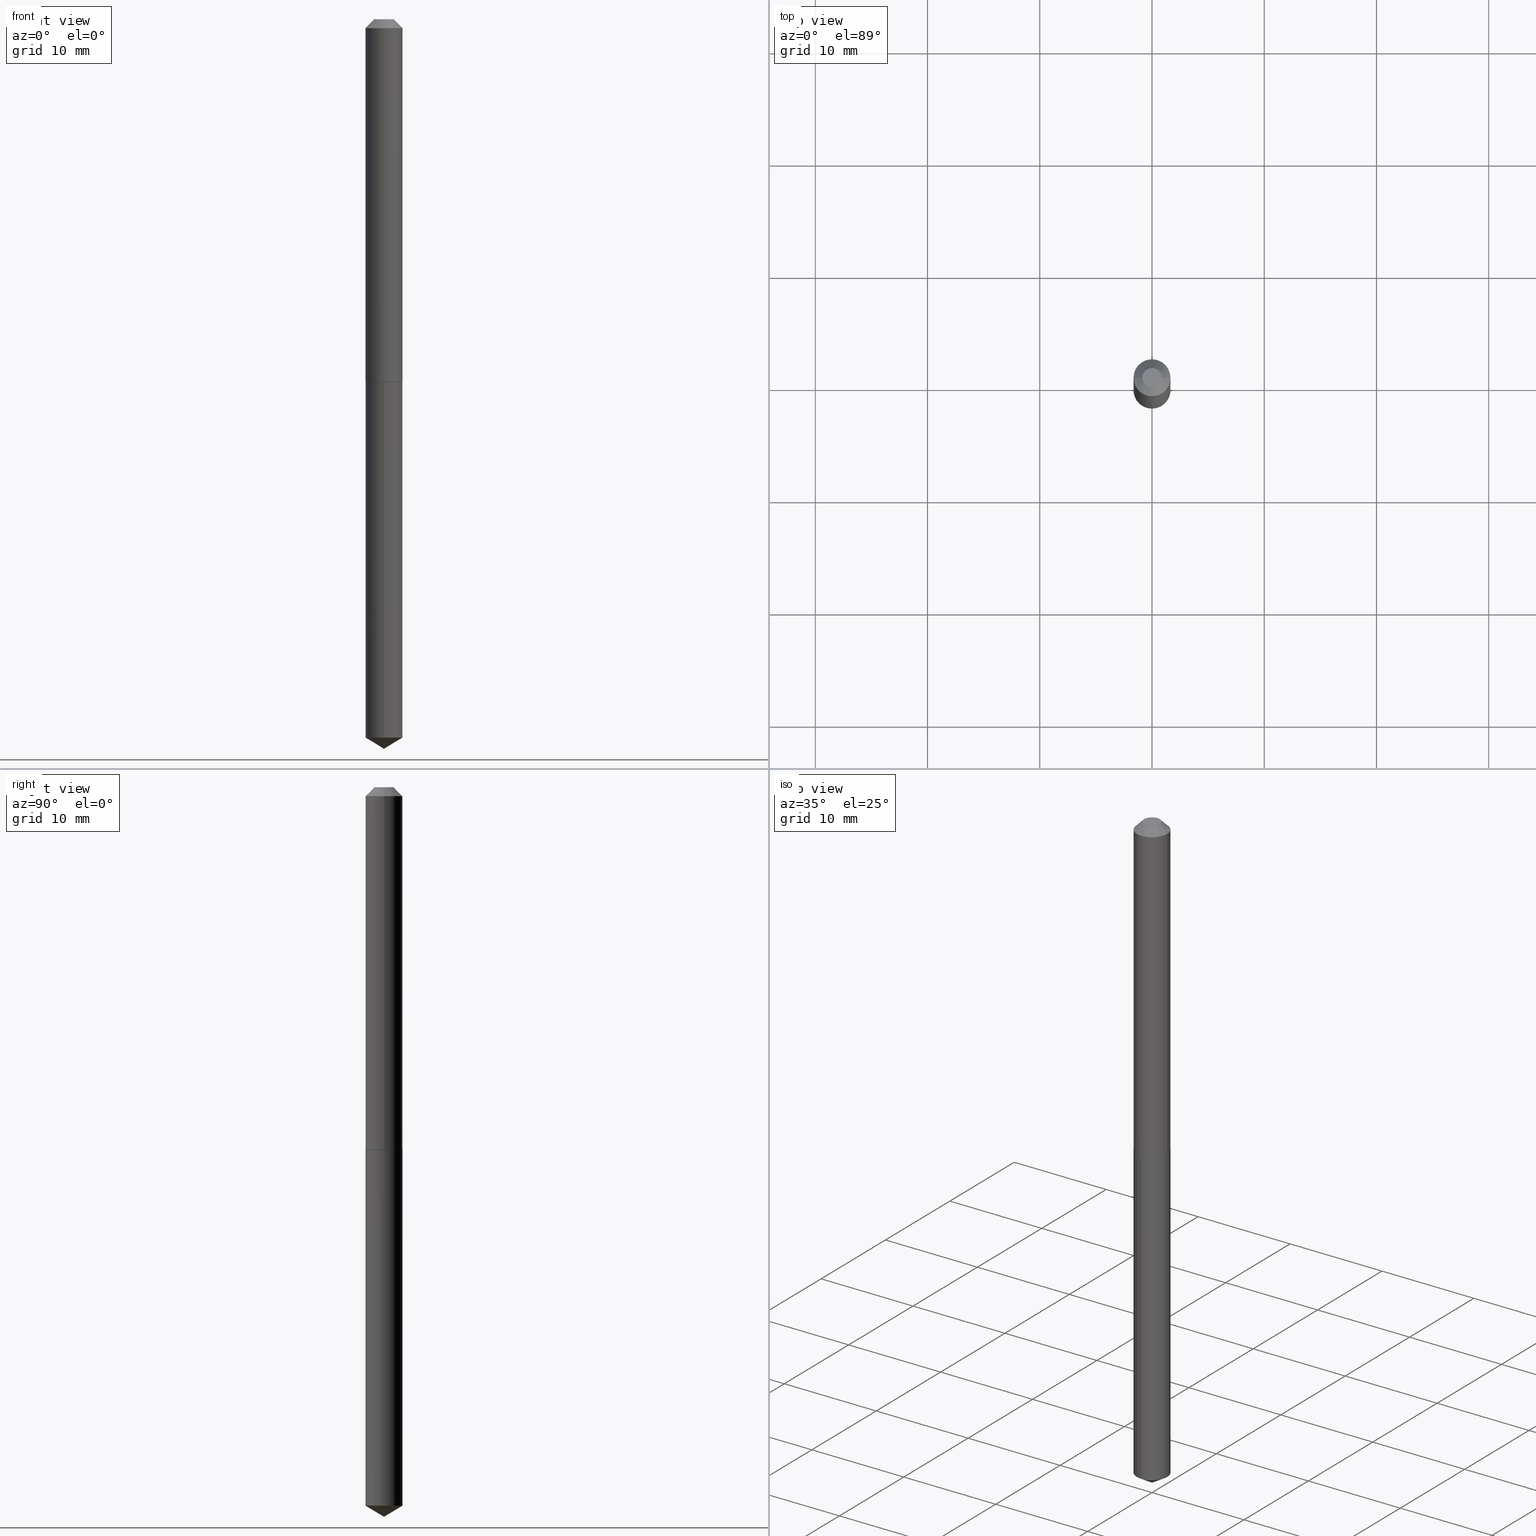
[diagram: canonical four-view strip — front | top / right | iso, engineering-drawing reading convention]
A machine part, canonical four-view strip (front | top / right | iso — engineering-drawing reading convention). The complete STEP part file that produces these views, byte-faithful:
ISO-10303-21;
HEADER;
FILE_DESCRIPTION (( 'STEP AP203' ),
    '1' );
FILE_NAME ('68312.STEP',
    '2024-04-23T13:03:15',
    ( '' ),
    ( '' ),
    'SwSTEP 2.0',
    'SolidWorks 2023',
    '' );
FILE_SCHEMA (( 'CONFIG_CONTROL_DESIGN' ));
ENDSEC;

DATA;
#1 = PERSON_AND_ORGANIZATION_ROLE ( 'classification_officer' ) ;
#2 = EDGE_LOOP ( 'NONE', ( #26, #289 ) ) ;
#3 = ADVANCED_FACE ( 'NONE', ( #213 ), #30, .T. ) ;
#4 = VECTOR ( 'NONE', #97, 39.37007874015748143 ) ;
#5 = AXIS2_PLACEMENT_3D ( 'NONE', #338, #66, #50 ) ;
#6 = PERSON_AND_ORGANIZATION ( #77, #353 ) ;
#7 = CARTESIAN_POINT ( 'NONE',  ( 3.109902680825638129E-29, -4.440116818606828093E-15, -1.271700000000000053 ) ) ;
#8 = DIRECTION ( 'NONE',  ( -2.445570832791606508E-29, 3.491335230935686971E-15, 1.000000000000000000 ) ) ;
#9 = DIRECTION ( 'NONE',  ( -6.982962677686266711E-15, -1.000000000000000000, 0.000000000000000000 ) ) ;
#10 = CIRCLE ( 'NONE', #352, 0.06494999999999999385 ) ;
#11 = CC_DESIGN_SECURITY_CLASSIFICATION ( #69, ( #18 ) ) ;
#12 = DIRECTION ( 'NONE',  ( 1.000000000000000000, -6.982962677686265922E-15, 4.876176775795935793E-29 ) ) ;
#13 = LINE ( 'NONE', #162, #41 ) ;
#14 = CARTESIAN_POINT ( 'NONE',  ( 4.614975068762469526E-16, 0.06494999999999556684, -1.271700000000000275 ) ) ;
#15 = ORIENTED_EDGE ( 'NONE', *, *, #123, .T. ) ;
#16 = CC_DESIGN_PERSON_AND_ORGANIZATION_ASSIGNMENT ( #122, #82, ( #134 ) ) ;
#17 = DIRECTION ( 'NONE',  ( -2.445468806185136597E-29, 3.491481338843145583E-15, 1.000000000000000000 ) ) ;
#18 = PRODUCT_DEFINITION_FORMATION_WITH_SPECIFIED_SOURCE ( 'ANY', '', #104, .NOT_KNOWN. ) ;
#19 = DIRECTION ( 'NONE',  ( 0.000000000000000000, 0.000000000000000000, 1.000000000000000000 ) ) ;
#20 = DIRECTION ( 'NONE',  ( 1.000000000000000000, -6.982962677686267499E-15, 4.876196328173749550E-29 ) ) ;
#21 = ADVANCED_FACE ( 'NONE', ( #116 ), #152, .T. ) ;
#22 = DIRECTION ( 'NONE',  ( -2.445570832791606508E-29, 3.491335230935686971E-15, 1.000000000000000000 ) ) ;
#23 = ORIENTED_EDGE ( 'NONE', *, *, #109, .F. ) ;
#24 = CIRCLE ( 'NONE', #341, 0.06494999999999999385 ) ;
#25 = LINE ( 'NONE', #75, #177 ) ;
#26 = ORIENTED_EDGE ( 'NONE', *, *, #181, .T. ) ;
#27 = ADVANCED_FACE ( 'NONE', ( #267 ), #118, .F. ) ;
#28 = DIRECTION ( 'NONE',  ( 1.000000000000000000, 0.000000000000000000, 0.000000000000000000 ) ) ;
#29 = VERTEX_POINT ( 'NONE', #61 ) ;
#30 = CONICAL_SURFACE ( 'NONE', #76, 65.52281426576929846, 1.029744258676660307 ) ;
#31 = AXIS2_PLACEMENT_3D ( 'NONE', #288, #381, #201 ) ;
#32 = CARTESIAN_POINT ( 'NONE',  ( 3.109902680825638129E-29, -4.440116818606828093E-15, -1.271700000000000053 ) ) ;
#33 = CARTESIAN_POINT ( 'NONE',  ( 3.109902680825638129E-29, -4.440116818606828093E-15, -1.271700000000000053 ) ) ;
#34 = PERSON_AND_ORGANIZATION_ROLE ( 'design_supplier' ) ;
#35 = DIRECTION ( 'NONE',  ( -5.985567269335963368E-15, -0.8571673007021134438, 0.5150380749100521571 ) ) ;
#36 = AXIS2_PLACEMENT_3D ( 'NONE', #192, #277, #133 ) ;
#37 = COORDINATED_UNIVERSAL_TIME_OFFSET ( 5, 0, .BEHIND. ) ;
#38 = VERTEX_POINT ( 'NONE', #114 ) ;
#39 = VERTEX_POINT ( 'NONE', #235 ) ;
#40 = FACE_OUTER_BOUND ( 'NONE', #120, .T. ) ;
#41 = VECTOR ( 'NONE', #339, 39.37007874015748143 ) ;
#42 = FACE_OUTER_BOUND ( 'NONE', #313, .T. ) ;
#43 = FACE_OUTER_BOUND ( 'NONE', #2, .T. ) ;
#44 = ADVANCED_FACE ( 'NONE', ( #207 ), #247, .T. ) ;
#45 = VERTEX_POINT ( 'NONE', #334 ) ;
#46 = CARTESIAN_POINT ( 'NONE',  ( 0.06494999999999999385, -5.546981367941099671E-16, -0.03125000000000020123 ) ) ;
#47 = DIRECTION ( 'NONE',  ( -0.7071067811865452413, 2.468850131082233000E-15, -0.7071067811865497932 ) ) ;
#48 = LOCAL_TIME ( 9, 3, 15.00000000000000000, #359 ) ;
#49 = EDGE_CURVE ( 'NONE', #369, #332, #142, .T. ) ;
#50 = DIRECTION ( 'NONE',  ( -6.982962677686266711E-15, -1.000000000000000000, 0.000000000000000000 ) ) ;
#51 = PERSON_AND_ORGANIZATION ( #77, #353 ) ;
#52 = CIRCLE ( 'NONE', #219, 0.06495000000000014651 ) ;
#53 = ORIENTED_EDGE ( 'NONE', *, *, #123, .F. ) ;
#54 = APPROVAL ( #179, 'UNSPECIFIED' ) ;
#55 = ORIENTED_EDGE ( 'NONE', *, *, #306, .F. ) ;
#56 = DATE_AND_TIME ( #147, #272 ) ;
#57 = DIRECTION ( 'NONE',  ( 1.000000000000000000, -6.982962677686269077E-15, 0.000000000000000000 ) ) ;
#58 = AXIS2_PLACEMENT_3D ( 'NONE', #67, #188, #365 ) ;
#59 = CC_DESIGN_APPROVAL ( #54, ( #134 ) ) ;
#60 = CARTESIAN_POINT ( 'NONE',  ( 3.109902680825638129E-29, -4.440116818606828093E-15, -1.271700000000000053 ) ) ;
#61 = CARTESIAN_POINT ( 'NONE',  ( -4.535434259156918360E-16, -0.06495000000000443474, -1.271699999999999608 ) ) ;
#62 = DIRECTION ( 'NONE',  ( -2.445468806185136597E-29, 3.491481338843145583E-15, 1.000000000000000000 ) ) ;
#63 = EDGE_CURVE ( 'NONE', #112, #45, #265, .T. ) ;
#64 = CONICAL_SURFACE ( 'NONE', #58, 0.06494999999999999385, 0.7853981633974450594 ) ;
#65 = ORIENTED_EDGE ( 'NONE', *, *, #306, .T. ) ;
#66 = DIRECTION ( 'NONE',  ( -2.445570832791606508E-29, 3.491335230935686971E-15, 1.000000000000000000 ) ) ;
#67 = CARTESIAN_POINT ( 'NONE',  ( 7.642090019328601786E-31, -1.091087918388490144E-16, -0.03125000000000020123 ) ) ;
#68 = AXIS2_PLACEMENT_3D ( 'NONE', #32, #360, #236 ) ;
#69 = SECURITY_CLASSIFICATION ( '', '', #238 ) ;
#70 = DIRECTION ( 'NONE',  ( -2.445468806185136597E-29, 3.491481338843145583E-15, 1.000000000000000000 ) ) ;
#71 = ORIENTED_EDGE ( 'NONE', *, *, #131, .T. ) ;
#72 = CARTESIAN_POINT ( 'NONE',  ( -4.535434259156613663E-16, -0.06495000000000882012, -2.520074102794160442 ) ) ;
#73 = ORIENTED_EDGE ( 'NONE', *, *, #181, .F. ) ;
#74 = LINE ( 'NONE', #254, #4 ) ;
#75 = CARTESIAN_POINT ( 'NONE',  ( -0.06494999999999999385, 3.444346340768739447E-16, -0.03125000000000020123 ) ) ;
#76 = AXIS2_PLACEMENT_3D ( 'NONE', #330, #273, #337 ) ;
#77 = PERSON ( 'UNSPECIFIED', 'UNSPECIFIED', 'UNSPECIFIED', ('UNSPECIFIED'), ('UNSPECIFIED'), ('UNSPECIFIED') ) ;
#78 = VERTEX_POINT ( 'NONE', #146 ) ;
#79 = ORIENTED_EDGE ( 'NONE', *, *, #261, .F. ) ;
#80 = CARTESIAN_POINT ( 'NONE',  ( -0.06495000000000007712, 4.614975068761856187E-16, -3.194848341120565109E-30 ) ) ;
#81 = ORIENTED_EDGE ( 'NONE', *, *, #94, .F. ) ;
#82 = PERSON_AND_ORGANIZATION_ROLE ( 'creator' ) ;
#83 = DIRECTION ( 'NONE',  ( -1.000000000000000000, 6.982962677686266711E-15, 0.000000000000000000 ) ) ;
#84 = EDGE_LOOP ( 'NONE', ( #169, #260 ) ) ;
#85 = AXIS2_PLACEMENT_3D ( 'NONE', #204, #327, #269 ) ;
#86 = AXIS2_PLACEMENT_3D ( 'NONE', #108, #383, #20 ) ;
#87 = DIRECTION ( 'NONE',  ( 1.000000000000000000, -6.982962677686265922E-15, 4.876176775795935793E-29 ) ) ;
#88 = CALENDAR_DATE ( 2024, 23, 4 ) ;
#89 = EDGE_CURVE ( 'NONE', #78, #166, #176, .T. ) ;
#90 = ORIENTED_EDGE ( 'NONE', *, *, #145, .F. ) ;
#91 = DIMENSIONAL_EXPONENTS ( 1.000000000000000000, 0.000000000000000000, 0.000000000000000000, 0.000000000000000000, 0.000000000000000000, 0.000000000000000000, 0.000000000000000000 ) ;
#92 = PERSON_AND_ORGANIZATION_ROLE ( 'creator' ) ;
#93 = ORIENTED_EDGE ( 'NONE', *, *, #335, .F. ) ;
#94 = EDGE_CURVE ( 'NONE', #45, #38, #274, .T. ) ;
#95 = CONICAL_SURFACE ( 'NONE', #371, 65.52281426576929846, 1.029744258676660307 ) ;
#96 = DIRECTION ( 'NONE',  ( -1.000000000000000000, 6.982962677686265922E-15, -4.876176775795935793E-29 ) ) ;
#97 = DIRECTION ( 'NONE',  ( 6.090539988449801312E-15, 0.8571673007021169965, 0.5150380749100461619 ) ) ;
#98 = DIRECTION ( 'NONE',  ( -2.445468806185136597E-29, 3.491481338843145583E-15, 1.000000000000000000 ) ) ;
#99 = ORIENTED_EDGE ( 'NONE', *, *, #257, .T. ) ;
#100 = VECTOR ( 'NONE', #305, 39.37007874015748143 ) ;
#101 = CARTESIAN_POINT ( 'NONE',  ( 7.642090019328601786E-31, -1.091087918388490144E-16, -0.03125000000000020123 ) ) ;
#102 = EDGE_LOOP ( 'NONE', ( #23, #15, #79 ) ) ;
#103 = CYLINDRICAL_SURFACE ( 'NONE', #215, 0.06495000000000007712 ) ;
#104 = PRODUCT ( '68312', '68312', '', ( #231 ) ) ;
#105 =( NAMED_UNIT ( * ) PLANE_ANGLE_UNIT ( ) SI_UNIT ( $, .RADIAN. ) );
#106 =( LENGTH_UNIT ( ) NAMED_UNIT ( * ) SI_UNIT ( $, .METRE. ) );
#107 = AXIS2_PLACEMENT_3D ( 'NONE', #195, #159, #96 ) ;
#108 = CARTESIAN_POINT ( 'NONE',  ( -5.839929314523175409E-48, 8.337871319499080759E-34, 2.388061258337333659E-19 ) ) ;
#109 = EDGE_CURVE ( 'NONE', #302, #124, #180, .T. ) ;
#110 = APPLICATION_PROTOCOL_DEFINITION ( 'international standard', 'config_control_design', 1994, #378 ) ;
#111 = CIRCLE ( 'NONE', #138, 0.06494999999999999385 ) ;
#112 = VERTEX_POINT ( 'NONE', #148 ) ;
#113 = CC_DESIGN_APPROVAL ( #248, ( #18 ) ) ;
#114 = CARTESIAN_POINT ( 'NONE',  ( -0.06495000000000014651, -3.976873571061221069E-15, -1.271200000000000108 ) ) ;
#115 = EDGE_CURVE ( 'NONE', #29, #166, #111, .T. ) ;
#116 = FACE_OUTER_BOUND ( 'NONE', #202, .T. ) ;
#117 = APPROVAL_STATUS ( 'not_yet_approved' ) ;
#118 = PLANE ( 'NONE',  #358 ) ;
#119 = COORDINATED_UNIVERSAL_TIME_OFFSET ( 5, 0, .BEHIND. ) ;
#120 = EDGE_LOOP ( 'NONE', ( #281, #233, #373, #90 ) ) ;
#121 = CC_DESIGN_DATE_AND_TIME_ASSIGNMENT ( #174, #331, ( #69 ) ) ;
#122 = PERSON_AND_ORGANIZATION ( #77, #353 ) ;
#123 = EDGE_CURVE ( 'NONE', #302, #78, #74, .T. ) ;
#124 = VERTEX_POINT ( 'NONE', #72 ) ;
#125 = UNCERTAINTY_MEASURE_WITH_UNIT (LENGTH_MEASURE( 1.000000000000000082E-05 ), #230, 'distance_accuracy_value', 'NONE');
#126 = DIRECTION ( 'NONE',  ( -2.445570832791606508E-29, 3.491335230935686971E-15, 1.000000000000000000 ) ) ;
#127 = FACE_OUTER_BOUND ( 'NONE', #385, .T. ) ;
#128 = DIRECTION ( 'NONE',  ( -2.445570832791606508E-29, 3.491335230935686971E-15, 1.000000000000000000 ) ) ;
#129 = DIRECTION ( 'NONE',  ( -2.445468806185136597E-29, 3.491481338843145583E-15, 1.000000000000000000 ) ) ;
#130 = ORIENTED_EDGE ( 'NONE', *, *, #49, .F. ) ;
#131 = EDGE_CURVE ( 'NONE', #78, #124, #308, .T. ) ;
#132 = AXIS2_PLACEMENT_3D ( 'NONE', #170, #19, #28 ) ;
#133 = DIRECTION ( 'NONE',  ( 1.000000000000000000, -6.982962677686267499E-15, 0.000000000000000000 ) ) ;
#134 = PRODUCT_DEFINITION ( 'UNKNOWN', '', #18, #256 ) ;
#135 = DIRECTION ( 'NONE',  ( 2.445570832791606508E-29, -3.491335230935686576E-15, -1.000000000000000000 ) ) ;
#136 = EDGE_CURVE ( 'NONE', #253, #38, #52, .T. ) ;
#137 = CARTESIAN_POINT ( 'NONE',  ( 3.109902680825638129E-29, -4.440116818606828093E-15, -1.271700000000000053 ) ) ;
#138 = AXIS2_PLACEMENT_3D ( 'NONE', #7, #8, #280 ) ;
#139 = DIRECTION ( 'NONE',  ( -2.445468806185136877E-29, 3.491481338843145188E-15, 1.000000000000000000 ) ) ;
#140 = EDGE_LOOP ( 'NONE', ( #93, #161, #99, #172 ) ) ;
#141 = CARTESIAN_POINT ( 'NONE',  ( 0.03369999999999999385, -3.929484596595052854E-16, 2.388061258359294556E-19 ) ) ;
#142 = CIRCLE ( 'NONE', #85, 0.06494999999999999385 ) ;
#143 = EDGE_CURVE ( 'NONE', #355, #332, #217, .T. ) ;
#144 = DIRECTION ( 'NONE',  ( 2.445468806185136597E-29, -3.491481338843145583E-15, -1.000000000000000000 ) ) ;
#145 = EDGE_CURVE ( 'NONE', #112, #253, #13, .T. ) ;
#146 = CARTESIAN_POINT ( 'NONE',  ( 4.614975068762467554E-16, 0.06494999999999120921, -2.520074102794160442 ) ) ;
#147 = CALENDAR_DATE ( 2024, 23, 4 ) ;
#148 = CARTESIAN_POINT ( 'NONE',  ( 0.06445000000000018769, -4.890168763183709857E-15, -1.271700000000000053 ) ) ;
#149 = CIRCLE ( 'NONE', #31, 0.06445000000000018769 ) ;
#150 = CC_DESIGN_PERSON_AND_ORGANIZATION_ASSIGNMENT ( #197, #167, ( #104 ) ) ;
#151 = DATE_AND_TIME ( #271, #48 ) ;
#152 = CYLINDRICAL_SURFACE ( 'NONE', #68, 0.06494999999999999385 ) ;
#153 = CARTESIAN_POINT ( 'NONE',  ( 3.108679946422545888E-29, -4.438371077937407378E-15, -1.271200000000000108 ) ) ;
#154 = ADVANCED_FACE ( 'NONE', ( #42 ), #282, .T. ) ;
#155 = CARTESIAN_POINT ( 'NONE',  ( 0.000000000000000000, 0.000000000000000000, 0.000000000000000000 ) ) ;
#156 = ADVANCED_BREP_SHAPE_REPRESENTATION ( '68312', ( #366, #376, #132 ), #283 ) ;
#157 = VECTOR ( 'NONE', #295, 39.37007874015748143 ) ;
#158 = CARTESIAN_POINT ( 'NONE',  ( 0.000000000000000000, 0.000000000000000000, 0.000000000000000000 ) ) ;
#159 = DIRECTION ( 'NONE',  ( 2.438088387897960049E-29, -3.491481338843145188E-15, -1.000000000000000000 ) ) ;
#160 = ADVANCED_FACE ( 'NONE', ( #218 ), #95, .T. ) ;
#161 = ORIENTED_EDGE ( 'NONE', *, *, #143, .T. ) ;
#162 = CARTESIAN_POINT ( 'NONE',  ( 0.06495000000000014651, -4.891914503853131360E-15, -1.271200000000000108 ) ) ;
#163 = PRODUCT_DEFINITION_SHAPE ( 'NONE', 'NONE',  #134 ) ;
#164 = FACE_OUTER_BOUND ( 'NONE', #214, .T. ) ;
#165 = CYLINDRICAL_SURFACE ( 'NONE', #316, 0.06494999999999999385 ) ;
#166 = VERTEX_POINT ( 'NONE', #14 ) ;
#167 = PERSON_AND_ORGANIZATION_ROLE ( 'design_owner' ) ;
#168 = LOCAL_TIME ( 9, 3, 15.00000000000000000, #387 ) ;
#169 = ORIENTED_EDGE ( 'NONE', *, *, #115, .T. ) ;
#170 = CARTESIAN_POINT ( 'NONE',  ( 0.000000000000000000, 0.000000000000000000, 0.000000000000000000 ) ) ;
#171 = DATE_AND_TIME ( #88, #190 ) ;
#172 = ORIENTED_EDGE ( 'NONE', *, *, #347, .F. ) ;
#173 = ADVANCED_FACE ( 'NONE', ( #40 ), #227, .T. ) ;
#174 = DATE_AND_TIME ( #296, #168 ) ;
#175 = AXIS2_PLACEMENT_3D ( 'NONE', #343, #128, #9 ) ;
#176 = LINE ( 'NONE', #183, #189 ) ;
#177 = VECTOR ( 'NONE', #47, 39.37007874015748143 ) ;
#178 = DIRECTION ( 'NONE',  ( -2.445570832791606508E-29, 3.491335230935686576E-15, 1.000000000000000000 ) ) ;
#179 = APPROVAL_STATUS ( 'not_yet_approved' ) ;
#180 = LINE ( 'NONE', #299, #200 ) ;
#181 = EDGE_CURVE ( 'NONE', #39, #355, #206, .T. ) ;
#182 = APPROVAL_STATUS ( 'not_yet_approved' ) ;
#183 = CARTESIAN_POINT ( 'NONE',  ( 4.614975068762160884E-16, 0.06494999999999555296, -1.271700000000000275 ) ) ;
#184 = ORIENTED_EDGE ( 'NONE', *, *, #293, .T. ) ;
#185 = EDGE_CURVE ( 'NONE', #166, #29, #10, .T. ) ;
#186 = CARTESIAN_POINT ( 'NONE',  ( 0.06495000000000014651, -4.891914503853131360E-15, -1.271200000000000108 ) ) ;
#187 = ADVANCED_FACE ( 'NONE', ( #279 ), #64, .T. ) ;
#188 = DIRECTION ( 'NONE',  ( 2.445468806185136597E-29, -3.491481338843145583E-15, -1.000000000000000000 ) ) ;
#189 = VECTOR ( 'NONE', #178, 39.37007874015748143 ) ;
#190 = LOCAL_TIME ( 9, 3, 15.00000000000000000, #37 ) ;
#191 = CARTESIAN_POINT ( 'NONE',  ( 3.108679946422545888E-29, -4.438371077937407378E-15, -1.271200000000000108 ) ) ;
#192 = CARTESIAN_POINT ( 'NONE',  ( 3.108679946422545888E-29, -4.438371077937407378E-15, -1.271200000000000108 ) ) ;
#193 = CC_DESIGN_PERSON_AND_ORGANIZATION_ASSIGNMENT ( #210, #1, ( #69 ) ) ;
#194 = ORIENTED_EDGE ( 'NONE', *, *, #136, .T. ) ;
#195 = CARTESIAN_POINT ( 'NONE',  ( -2.919964657261587705E-48, 4.168935659749540379E-34, 1.194030629168666829E-19 ) ) ;
#196 = VECTOR ( 'NONE', #255, 39.37007874015748143 ) ;
#197 = PERSON_AND_ORGANIZATION ( #77, #353 ) ;
#198 = PLANE ( 'NONE',  #266 ) ;
#199 = ORIENTED_EDGE ( 'NONE', *, *, #388, .F. ) ;
#200 = VECTOR ( 'NONE', #35, 39.37007874015748854 ) ;
#201 = DIRECTION ( 'NONE',  ( 1.000000000000000000, -6.982962677686269077E-15, 0.000000000000000000 ) ) ;
#202 = EDGE_LOOP ( 'NONE', ( #270, #389, #357, #390 ) ) ;
#203 = ADVANCED_FACE ( 'NONE', ( #127 ), #103, .T. ) ;
#204 = CARTESIAN_POINT ( 'NONE',  ( 7.642090019328601786E-31, -1.091087918388490144E-16, -0.03125000000000020123 ) ) ;
#205 = APPLICATION_CONTEXT ( 'configuration controlled 3d designs of mechanical parts and assemblies' ) ;
#206 = CIRCLE ( 'NONE', #252, 0.03369999999999999385 ) ;
#207 = FACE_OUTER_BOUND ( 'NONE', #244, .T. ) ;
#208 = CIRCLE ( 'NONE', #278, 0.06495000000000014651 ) ;
#209 = EDGE_CURVE ( 'NONE', #124, #29, #314, .T. ) ;
#210 = PERSON_AND_ORGANIZATION ( #77, #353 ) ;
#211 = CARTESIAN_POINT ( 'NONE',  ( -0.06495000000000014651, -3.976873571061221069E-15, -1.271200000000000108 ) ) ;
#212 = APPROVAL_ROLE ( '' ) ;
#213 = FACE_OUTER_BOUND ( 'NONE', #224, .T. ) ;
#214 = EDGE_LOOP ( 'NONE', ( #384, #71, #325, #345 ) ) ;
#215 = AXIS2_PLACEMENT_3D ( 'NONE', #155, #98, #12 ) ;
#216 = DIRECTION ( 'NONE',  ( 1.000000000000000000, -6.982962677686265133E-15, 0.000000000000000000 ) ) ;
#217 = LINE ( 'NONE', #46, #100 ) ;
#218 = FACE_OUTER_BOUND ( 'NONE', #102, .T. ) ;
#219 = AXIS2_PLACEMENT_3D ( 'NONE', #191, #312, #367 ) ;
#220 = ORIENTED_EDGE ( 'NONE', *, *, #293, .F. ) ;
#221 = CIRCLE ( 'NONE', #86, 0.03369999999999999385 ) ;
#222 = ADVANCED_FACE ( 'NONE', ( #346 ), #328, .T. ) ;
#223 = DIRECTION ( 'NONE',  ( -2.445468806185136597E-29, 3.491481338843145583E-15, 1.000000000000000000 ) ) ;
#224 = EDGE_LOOP ( 'NONE', ( #53, #363, #240 ) ) ;
#225 = PLANE ( 'NONE',  #107 ) ;
#226 = CARTESIAN_POINT ( 'NONE',  ( -0.06494999999999999385, -1.812242428011941536E-15, -0.03125000000000020123 ) ) ;
#227 = CONICAL_SURFACE ( 'NONE', #36, 0.06495000000000014651, 0.7853981633975165577 ) ;
#228 = LINE ( 'NONE', #80, #301 ) ;
#229 = DIRECTION ( 'NONE',  ( -6.982962677686266711E-15, -1.000000000000000000, 4.206078512185163024E-15 ) ) ;
#230 =( CONVERSION_BASED_UNIT ( 'INCH', #264 ) LENGTH_UNIT ( ) NAMED_UNIT ( #91 ) );
#231 = MECHANICAL_CONTEXT ( 'NONE', #378, 'mechanical' ) ;
#232 = APPROVAL_PERSON_ORGANIZATION ( #6, #248, #361 ) ;
#233 = ORIENTED_EDGE ( 'NONE', *, *, #94, .T. ) ;
#234 = PERSON_AND_ORGANIZATION ( #77, #353 ) ;
#235 = CARTESIAN_POINT ( 'NONE',  ( -0.03369999999999999385, 2.898802381574505777E-16, 2.388061258318971361E-19 ) ) ;
#236 = DIRECTION ( 'NONE',  ( -6.982962677686266711E-15, -1.000000000000000000, 4.206078512185163024E-15 ) ) ;
#237 = ADVANCED_FACE ( 'NONE', ( #43 ), #225, .F. ) ;
#238 = SECURITY_CLASSIFICATION_LEVEL ( 'unclassified' ) ;
#239 = APPROVAL_PERSON_ORGANIZATION ( #51, #54, #300 ) ;
#240 = ORIENTED_EDGE ( 'NONE', *, *, #131, .F. ) ;
#241 = PERSON_AND_ORGANIZATION ( #77, #353 ) ;
#242 = DIRECTION ( 'NONE',  ( -2.438088387897960049E-29, 3.491481338843145188E-15, 1.000000000000000000 ) ) ;
#243 = DATE_TIME_ROLE ( 'creation_date' ) ;
#244 = EDGE_LOOP ( 'NONE', ( #382, #73, #291, #297 ) ) ;
#245 = DIRECTION ( 'NONE',  ( -6.982962677686266711E-15, -1.000000000000000000, 4.206078512185163024E-15 ) ) ;
#246 = APPROVAL ( #117, 'UNSPECIFIED' ) ;
#247 = CONICAL_SURFACE ( 'NONE', #349, 0.06494999999999999385, 0.7853981633974450594 ) ;
#248 = APPROVAL ( #182, 'UNSPECIFIED' ) ;
#249 = CARTESIAN_POINT ( 'NONE',  ( -5.839929314523175409E-48, 8.337871319499080759E-34, 2.388061258337333659E-19 ) ) ;
#250 = DIRECTION ( 'NONE',  ( 1.000000000000000000, -6.982962677686267499E-15, 4.876196328173749550E-29 ) ) ;
#251 = DIRECTION ( 'NONE',  ( -6.982962677686267499E-15, -1.000000000000000000, 3.468864327941548460E-15 ) ) ;
#252 = AXIS2_PLACEMENT_3D ( 'NONE', #249, #129, #250 ) ;
#253 = VERTEX_POINT ( 'NONE', #186 ) ;
#254 = CARTESIAN_POINT ( 'NONE',  ( 6.258462593657200527E-29, -8.934675989487516707E-15, -2.559099999999999930 ) ) ;
#255 = DIRECTION ( 'NONE',  ( -2.445468806185136877E-29, 3.491481338843145188E-15, 1.000000000000000000 ) ) ;
#256 = DESIGN_CONTEXT ( 'detailed design', #205, 'design' ) ;
#257 = EDGE_CURVE ( 'NONE', #332, #369, #24, .T. ) ;
#258 = AXIS2_PLACEMENT_3D ( 'NONE', #158, #17, #276 ) ;
#259 = CARTESIAN_POINT ( 'NONE',  ( 6.258460318196999612E-29, -8.934675989487516707E-15, -2.559099999999999930 ) ) ;
#260 = ORIENTED_EDGE ( 'NONE', *, *, #185, .T. ) ;
#261 = EDGE_CURVE ( 'NONE', #124, #78, #350, .T. ) ;
#262 = DIRECTION ( 'NONE',  ( 1.000000000000000000, -6.982962677686267499E-15, 0.000000000000000000 ) ) ;
#263 = CC_DESIGN_PERSON_AND_ORGANIZATION_ASSIGNMENT ( #268, #92, ( #18 ) ) ;
#264 = LENGTH_MEASURE_WITH_UNIT ( LENGTH_MEASURE( 0.02539999999999999897 ), #106 );
#265 = CIRCLE ( 'NONE', #287, 0.06445000000000018769 ) ;
#266 = AXIS2_PLACEMENT_3D ( 'NONE', #137, #135, #348 ) ;
#267 = FACE_OUTER_BOUND ( 'NONE', #304, .T. ) ;
#268 = PERSON_AND_ORGANIZATION ( #77, #353 ) ;
#269 = DIRECTION ( 'NONE',  ( 1.000000000000000000, -6.982962677686265133E-15, 0.000000000000000000 ) ) ;
#270 = ORIENTED_EDGE ( 'NONE', *, *, #261, .T. ) ;
#271 = CALENDAR_DATE ( 2024, 23, 4 ) ;
#272 = LOCAL_TIME ( 9, 3, 15.00000000000000000, #294 ) ;
#273 = DIRECTION ( 'NONE',  ( -2.445570832791606508E-29, 3.491335230935686971E-15, 1.000000000000000000 ) ) ;
#274 = LINE ( 'NONE', #211, #157 ) ;
#275 = ADVANCED_FACE ( 'NONE', ( #164 ), #165, .T. ) ;
#276 = DIRECTION ( 'NONE',  ( 1.000000000000000000, -6.982962677686265922E-15, 4.876176775795935793E-29 ) ) ;
#277 = DIRECTION ( 'NONE',  ( -2.445468806185136597E-29, 3.491481338843145583E-15, 1.000000000000000000 ) ) ;
#278 = AXIS2_PLACEMENT_3D ( 'NONE', #377, #379, #262 ) ;
#279 = FACE_OUTER_BOUND ( 'NONE', #140, .T. ) ;
#280 = DIRECTION ( 'NONE',  ( -6.982962677686266711E-15, -1.000000000000000000, 4.206078512185163024E-15 ) ) ;
#281 = ORIENTED_EDGE ( 'NONE', *, *, #63, .T. ) ;
#282 = CYLINDRICAL_SURFACE ( 'NONE', #258, 0.06495000000000007712 ) ;
#283 =( GEOMETRIC_REPRESENTATION_CONTEXT ( 3 ) GLOBAL_UNCERTAINTY_ASSIGNED_CONTEXT ( ( #125 ) ) GLOBAL_UNIT_ASSIGNED_CONTEXT ( ( #230, #105, #319 ) ) REPRESENTATION_CONTEXT ( 'NONE', 'WORKASPACE' ) );
#284 = LINE ( 'NONE', #322, #196 ) ;
#285 = CARTESIAN_POINT ( 'NONE',  ( 3.109902680825638129E-29, -4.440116818606828093E-15, -1.271700000000000053 ) ) ;
#286 = ORIENTED_EDGE ( 'NONE', *, *, #318, .T. ) ;
#287 = AXIS2_PLACEMENT_3D ( 'NONE', #33, #62, #57 ) ;
#288 = CARTESIAN_POINT ( 'NONE',  ( 3.109902680825638129E-29, -4.440116818606828093E-15, -1.271700000000000053 ) ) ;
#289 = ORIENTED_EDGE ( 'NONE', *, *, #335, .T. ) ;
#290 = CARTESIAN_POINT ( 'NONE',  ( 0.06494999999999999385, -5.626522177545718995E-16, -0.03125000000000020123 ) ) ;
#291 = ORIENTED_EDGE ( 'NONE', *, *, #347, .T. ) ;
#292 = EDGE_LOOP ( 'NONE', ( #81, #65, #321, #342 ) ) ;
#293 = EDGE_CURVE ( 'NONE', #38, #369, #228, .T. ) ;
#294 = COORDINATED_UNIVERSAL_TIME_OFFSET ( 5, 0, .BEHIND. ) ;
#295 = DIRECTION ( 'NONE',  ( -0.7071067811865957564, 7.493145998870527710E-15, 0.7071067811864992780 ) ) ;
#296 = CALENDAR_DATE ( 2024, 23, 4 ) ;
#297 = ORIENTED_EDGE ( 'NONE', *, *, #49, .T. ) ;
#298 = CALENDAR_DATE ( 2024, 23, 4 ) ;
#299 = CARTESIAN_POINT ( 'NONE',  ( 6.258200823726104923E-29, -8.935047600339348582E-15, -2.559099999999999930 ) ) ;
#300 = APPROVAL_ROLE ( '' ) ;
#301 = VECTOR ( 'NONE', #139, 39.37007874015748143 ) ;
#302 = VERTEX_POINT ( 'NONE', #259 ) ;
#303 = CC_DESIGN_DATE_AND_TIME_ASSIGNMENT ( #56, #243, ( #134 ) ) ;
#304 = EDGE_LOOP ( 'NONE', ( #323, #55 ) ) ;
#305 = DIRECTION ( 'NONE',  ( 0.7071067811865452413, -7.319954787623248157E-15, -0.7071067811865497932 ) ) ;
#306 = EDGE_CURVE ( 'NONE', #45, #112, #149, .T. ) ;
#307 = CARTESIAN_POINT ( 'NONE',  ( -4.535434259156918360E-16, -0.06495000000000443474, -1.271699999999999608 ) ) ;
#308 = CIRCLE ( 'NONE', #175, 0.06494999999999999385 ) ;
#309 = CC_DESIGN_APPROVAL ( #246, ( #69 ) ) ;
#310 = DIRECTION ( 'NONE',  ( 1.000000000000000000, -6.982962677686267499E-15, 0.000000000000000000 ) ) ;
#311 = ORIENTED_EDGE ( 'NONE', *, *, #257, .F. ) ;
#312 = DIRECTION ( 'NONE',  ( -2.445468806185136597E-29, 3.491481338843145583E-15, 1.000000000000000000 ) ) ;
#313 = EDGE_LOOP ( 'NONE', ( #220, #286, #354, #130 ) ) ;
#314 = LINE ( 'NONE', #307, #386 ) ;
#315 = CLOSED_SHELL ( 'NONE', ( #187, #203, #173, #27, #222, #154, #44, #237 ) ) ;
#316 = AXIS2_PLACEMENT_3D ( 'NONE', #285, #22, #229 ) ;
#317 = CC_DESIGN_PERSON_AND_ORGANIZATION_ASSIGNMENT ( #241, #34, ( #18 ) ) ;
#318 = EDGE_CURVE ( 'NONE', #38, #253, #208, .T. ) ;
#319 =( NAMED_UNIT ( * ) SI_UNIT ( $, .STERADIAN. ) SOLID_ANGLE_UNIT ( ) );
#320 = APPLICATION_PROTOCOL_DEFINITION ( 'international standard', 'config_control_design', 1994, #205 ) ;
#321 = ORIENTED_EDGE ( 'NONE', *, *, #145, .T. ) ;
#322 = CARTESIAN_POINT ( 'NONE',  ( 0.06495000000000007712, -4.535434259157234891E-16, 3.167076815879463918E-30 ) ) ;
#323 = ORIENTED_EDGE ( 'NONE', *, *, #63, .F. ) ;
#324 = APPROVAL_DATE_TIME ( #151, #246 ) ;
#325 = ORIENTED_EDGE ( 'NONE', *, *, #209, .T. ) ;
#326 = DATE_AND_TIME ( #298, #364 ) ;
#327 = DIRECTION ( 'NONE',  ( -2.445468806185136597E-29, 3.491481338843145583E-15, 1.000000000000000000 ) ) ;
#328 = CONICAL_SURFACE ( 'NONE', #380, 0.06495000000000014651, 0.7853981633975165577 ) ;
#329 = APPROVAL_DATE_TIME ( #171, #248 ) ;
#330 = CARTESIAN_POINT ( 'NONE',  ( -9.002398568067649871E-28, 1.285192811553104691E-13, 36.81097874015748062 ) ) ;
#331 = DATE_TIME_ROLE ( 'classification_date' ) ;
#332 = VERTEX_POINT ( 'NONE', #290 ) ;
#333 = SHAPE_DEFINITION_REPRESENTATION ( #163, #156 ) ;
#334 = CARTESIAN_POINT ( 'NONE',  ( -0.06445000000000018769, -3.979522798235331481E-15, -1.271700000000000053 ) ) ;
#335 = EDGE_CURVE ( 'NONE', #355, #39, #221, .T. ) ;
#336 = CLOSED_SHELL ( 'NONE', ( #21, #160, #3, #275, #344 ) ) ;
#337 = DIRECTION ( 'NONE',  ( -6.982962677686267499E-15, -1.000000000000000000, 3.468864327941548460E-15 ) ) ;
#338 = CARTESIAN_POINT ( 'NONE',  ( 6.162889975031427780E-29, -8.798609305079810371E-15, -2.520074102794160442 ) ) ;
#339 = DIRECTION ( 'NONE',  ( 0.7071067811865957564, -2.468850131082761932E-15, 0.7071067811864992780 ) ) ;
#340 = DIRECTION ( 'NONE',  ( -2.445570832791606508E-29, 3.491335230935686576E-15, 1.000000000000000000 ) ) ;
#341 = AXIS2_PLACEMENT_3D ( 'NONE', #101, #223, #216 ) ;
#342 = ORIENTED_EDGE ( 'NONE', *, *, #318, .F. ) ;
#343 = CARTESIAN_POINT ( 'NONE',  ( 6.162889975031427780E-29, -8.798609305079810371E-15, -2.520074102794160442 ) ) ;
#344 = ADVANCED_FACE ( 'NONE', ( #351 ), #198, .F. ) ;
#345 = ORIENTED_EDGE ( 'NONE', *, *, #185, .F. ) ;
#346 = FACE_OUTER_BOUND ( 'NONE', #292, .T. ) ;
#347 = EDGE_CURVE ( 'NONE', #39, #369, #25, .T. ) ;
#348 = DIRECTION ( 'NONE',  ( 6.982962677686265922E-15, 1.000000000000000000, -3.491335230935686576E-15 ) ) ;
#349 = AXIS2_PLACEMENT_3D ( 'NONE', #362, #144, #83 ) ;
#350 = CIRCLE ( 'NONE', #5, 0.06494999999999999385 ) ;
#351 = FACE_OUTER_BOUND ( 'NONE', #84, .T. ) ;
#352 = AXIS2_PLACEMENT_3D ( 'NONE', #368, #370, #245 ) ;
#353 = ORGANIZATION ( 'UNSPECIFIED', 'UNSPECIFIED', '' ) ;
#354 = ORIENTED_EDGE ( 'NONE', *, *, #388, .T. ) ;
#355 = VERTEX_POINT ( 'NONE', #141 ) ;
#356 = APPROVAL_DATE_TIME ( #326, #54 ) ;
#357 = ORIENTED_EDGE ( 'NONE', *, *, #115, .F. ) ;
#358 = AXIS2_PLACEMENT_3D ( 'NONE', #60, #242, #87 ) ;
#359 = COORDINATED_UNIVERSAL_TIME_OFFSET ( 5, 0, .BEHIND. ) ;
#360 = DIRECTION ( 'NONE',  ( -2.445570832791606508E-29, 3.491335230935686971E-15, 1.000000000000000000 ) ) ;
#361 = APPROVAL_ROLE ( '' ) ;
#362 = CARTESIAN_POINT ( 'NONE',  ( 7.642090019328601786E-31, -1.091087918388490144E-16, -0.03125000000000020123 ) ) ;
#363 = ORIENTED_EDGE ( 'NONE', *, *, #109, .T. ) ;
#364 = LOCAL_TIME ( 9, 3, 15.00000000000000000, #119 ) ;
#365 = DIRECTION ( 'NONE',  ( -1.000000000000000000, 6.982962677686266711E-15, 0.000000000000000000 ) ) ;
#366 = MANIFOLD_SOLID_BREP ( 'Body-Move/Copy2[1]', #336 ) ;
#367 = DIRECTION ( 'NONE',  ( 1.000000000000000000, -6.982962677686267499E-15, 0.000000000000000000 ) ) ;
#368 = CARTESIAN_POINT ( 'NONE',  ( 3.109902680825638129E-29, -4.440116818606828093E-15, -1.271700000000000053 ) ) ;
#369 = VERTEX_POINT ( 'NONE', #226 ) ;
#370 = DIRECTION ( 'NONE',  ( -2.445570832791606508E-29, 3.491335230935686971E-15, 1.000000000000000000 ) ) ;
#371 = AXIS2_PLACEMENT_3D ( 'NONE', #374, #126, #251 ) ;
#372 = APPROVAL_PERSON_ORGANIZATION ( #234, #246, #212 ) ;
#373 = ORIENTED_EDGE ( 'NONE', *, *, #136, .F. ) ;
#374 = CARTESIAN_POINT ( 'NONE',  ( -9.002398568067649871E-28, 1.285192811553104691E-13, 36.81097874015748062 ) ) ;
#375 = PRODUCT_RELATED_PRODUCT_CATEGORY ( 'detail', '', ( #104 ) ) ;
#376 = MANIFOLD_SOLID_BREP ( 'Body-Move/Copy2[2]', #315 ) ;
#377 = CARTESIAN_POINT ( 'NONE',  ( 3.108679946422545888E-29, -4.438371077937407378E-15, -1.271200000000000108 ) ) ;
#378 = APPLICATION_CONTEXT ( 'configuration controlled 3d designs of mechanical parts and assemblies' ) ;
#379 = DIRECTION ( 'NONE',  ( -2.445468806185136597E-29, 3.491481338843145583E-15, 1.000000000000000000 ) ) ;
#380 = AXIS2_PLACEMENT_3D ( 'NONE', #153, #70, #310 ) ;
#381 = DIRECTION ( 'NONE',  ( -2.445468806185136597E-29, 3.491481338843145583E-15, 1.000000000000000000 ) ) ;
#382 = ORIENTED_EDGE ( 'NONE', *, *, #143, .F. ) ;
#383 = DIRECTION ( 'NONE',  ( -2.445468806185136597E-29, 3.491481338843145583E-15, 1.000000000000000000 ) ) ;
#384 = ORIENTED_EDGE ( 'NONE', *, *, #89, .F. ) ;
#385 = EDGE_LOOP ( 'NONE', ( #194, #184, #311, #199 ) ) ;
#386 = VECTOR ( 'NONE', #340, 39.37007874015748143 ) ;
#387 = COORDINATED_UNIVERSAL_TIME_OFFSET ( 5, 0, .BEHIND. ) ;
#388 = EDGE_CURVE ( 'NONE', #253, #332, #284, .T. ) ;
#389 = ORIENTED_EDGE ( 'NONE', *, *, #89, .T. ) ;
#390 = ORIENTED_EDGE ( 'NONE', *, *, #209, .F. ) ;
ENDSEC;
END-ISO-10303-21;
